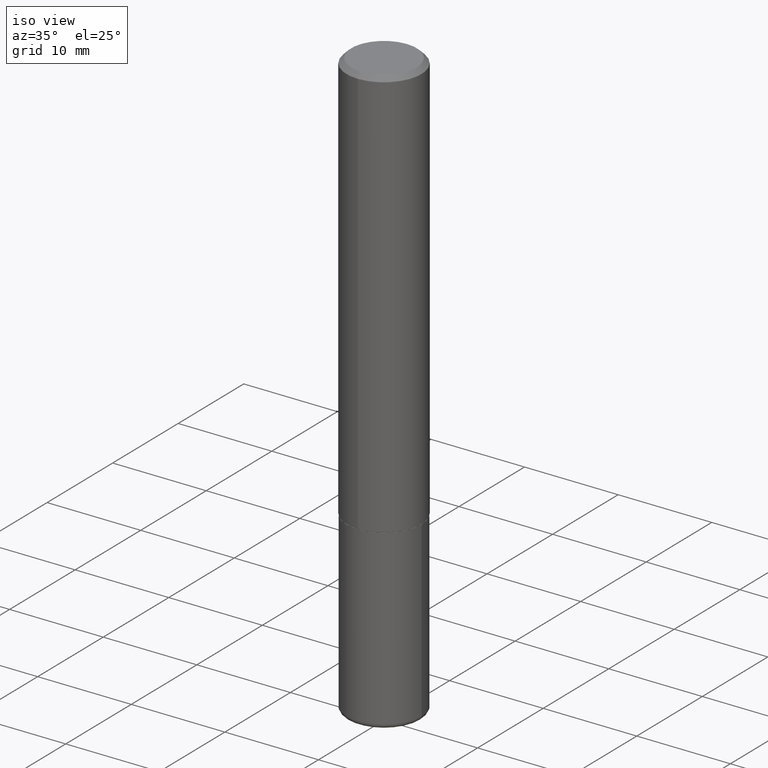
[diagram: clean part render]
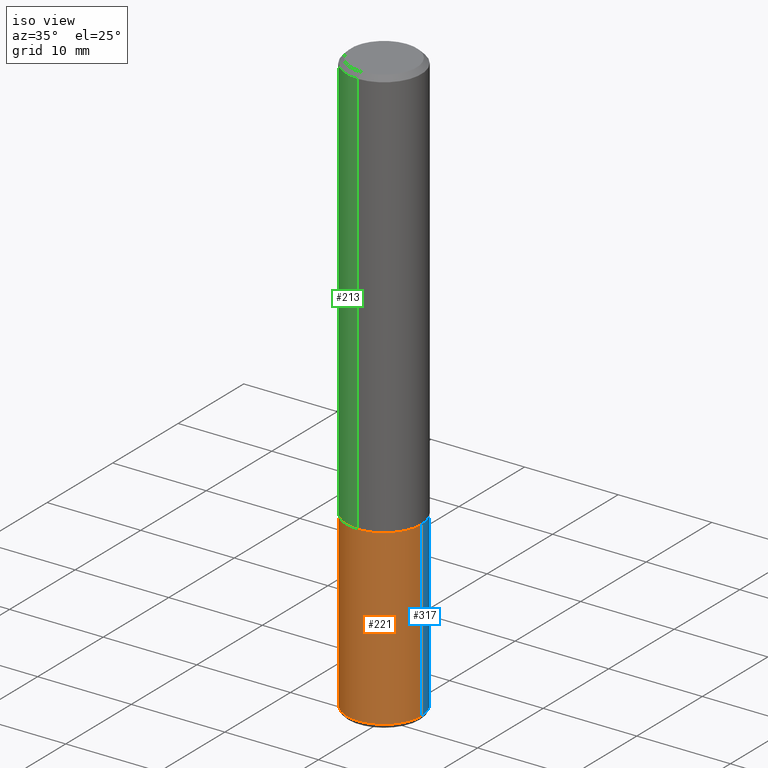
[diagram: same view with three faces highlighted in distinct colors, each labeled with its STEP entity id]
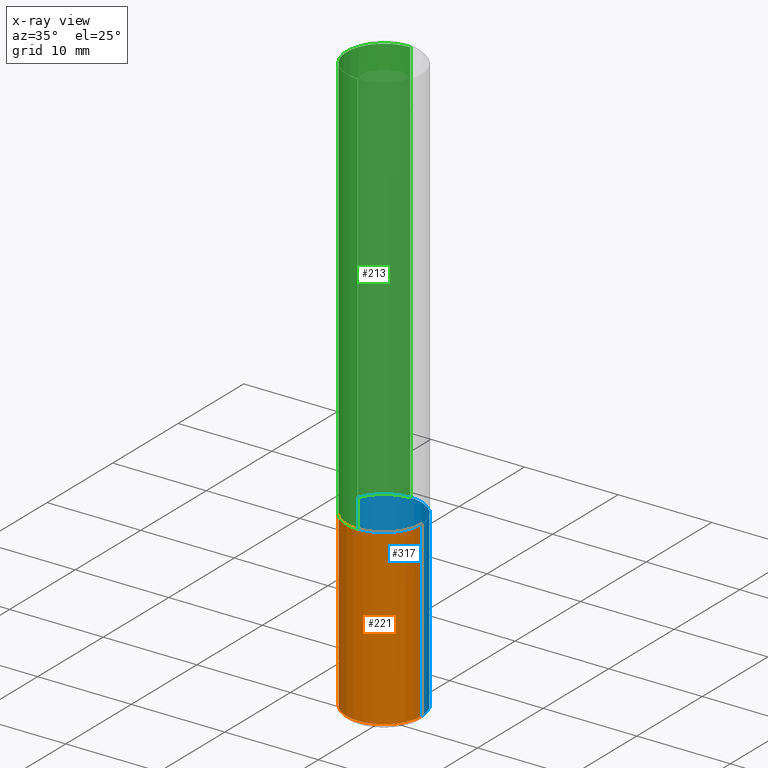
[diagram: x-ray of the same camera — body ghosted, the three highlighted faces saturated]
A machine part, iso view with three faces highlighted in distinct colors.
The next image is the same camera in x-ray (body ghosted, the three faces saturated) — at least one of them is partly hidden behind the body in this view.
Their STEP definitions:

[orange] entity #221 — the highlighted cylindrical surface (partial cylindrical patch) has radius 4.0005 mm, axis along (-0, 0, 1).
#3 = ORIENTED_EDGE ( 'NONE', *, *, #268, .F. ) ;
#5 = AXIS2_PLACEMENT_3D ( 'NONE', #410, #50, #305 ) ;
#6 = VERTEX_POINT ( 'NONE', #391 ) ;
#25 = CARTESIAN_POINT ( 'NONE',  ( -0.1575000000000000011, 1.119104808822157801E-15, -7.747322767151475583E-30 ) ) ;
#46 = AXIS2_PLACEMENT_3D ( 'NONE', #233, #417, #357 ) ;
#50 = DIRECTION ( 'NONE',  ( -2.445468806185136597E-29, 3.491481338843145583E-15, 1.000000000000000000 ) ) ;
#51 = FACE_OUTER_BOUND ( 'NONE', #137, .T. ) ;
#53 = DIRECTION ( 'NONE',  ( -2.445468806185136877E-29, 3.491481338843145188E-15, 1.000000000000000000 ) ) ;
#58 = CARTESIAN_POINT ( 'NONE',  ( 0.1575000000000000289, -9.690955604093032420E-15, -2.460600000000000342 ) ) ;
#85 = CARTESIAN_POINT ( 'NONE',  ( -0.1575000000000000289, -7.472034173535286547E-15, -2.460600000000000342 ) ) ;
#88 = CIRCLE ( 'NONE', #5, 0.1575000000000000011 ) ;
#122 = CIRCLE ( 'NONE', #46, 0.1575000000000000011 ) ;
#134 = VECTOR ( 'NONE', #252, 39.37007874015748143 ) ;
#137 = EDGE_LOOP ( 'NONE', ( #3, #384, #321, #170 ) ) ;
#144 = VERTEX_POINT ( 'NONE', #184 ) ;
#170 = ORIENTED_EDGE ( 'NONE', *, *, #223, .F. ) ;
#184 = CARTESIAN_POINT ( 'NONE',  ( 0.1575000000000000011, -7.148109745013570136E-15, -1.732300000000000173 ) ) ;
#215 = CYLINDRICAL_SURFACE ( 'NONE', #346, 0.1575000000000000011 ) ;
#221 = ADVANCED_FACE ( 'NONE', ( #51 ), #215, .T. ) ;
#223 = EDGE_CURVE ( 'NONE', #6, #144, #88, .T. ) ;
#233 = CARTESIAN_POINT ( 'NONE',  ( 6.017320544499148018E-29, -8.591138982357444151E-15, -2.460600000000000342 ) ) ;
#236 = VERTEX_POINT ( 'NONE', #58 ) ;
#252 = DIRECTION ( 'NONE',  ( -2.445468806185136877E-29, 3.491481338843145188E-15, 1.000000000000000000 ) ) ;
#268 = EDGE_CURVE ( 'NONE', #300, #6, #306, .T. ) ;
#281 = CARTESIAN_POINT ( 'NONE',  ( 0.000000000000000000, 0.000000000000000000, 0.000000000000000000 ) ) ;
#300 = VERTEX_POINT ( 'NONE', #85 ) ;
#305 = DIRECTION ( 'NONE',  ( 1.000000000000000000, -6.982962677686268288E-15, 0.000000000000000000 ) ) ;
#306 = LINE ( 'NONE', #25, #134 ) ;
#321 = ORIENTED_EDGE ( 'NONE', *, *, #340, .T. ) ;
#336 = DIRECTION ( 'NONE',  ( 1.000000000000000000, -6.982962677686265922E-15, 4.876176775795935232E-29 ) ) ;
#340 = EDGE_CURVE ( 'NONE', #236, #144, #373, .T. ) ;
#342 = CARTESIAN_POINT ( 'NONE',  ( 0.1575000000000000011, -1.099816621735586889E-15, 7.679978421878598033E-30 ) ) ;
#343 = DIRECTION ( 'NONE',  ( -2.445468806185136597E-29, 3.491481338843145583E-15, 1.000000000000000000 ) ) ;
#346 = AXIS2_PLACEMENT_3D ( 'NONE', #281, #343, #336 ) ;
#357 = DIRECTION ( 'NONE',  ( 1.000000000000000000, -6.982962677686261977E-15, 0.000000000000000000 ) ) ;
#362 = VECTOR ( 'NONE', #53, 39.37007874015748143 ) ;
#373 = LINE ( 'NONE', #342, #362 ) ;
#384 = ORIENTED_EDGE ( 'NONE', *, *, #403, .T. ) ;
#391 = CARTESIAN_POINT ( 'NONE',  ( -0.1575000000000000011, -6.200611243995555405E-15, -1.732300000000000173 ) ) ;
#403 = EDGE_CURVE ( 'NONE', #300, #236, #122, .T. ) ;
#410 = CARTESIAN_POINT ( 'NONE',  ( 4.236285612954512953E-29, -6.048293123277982656E-15, -1.732300000000000173 ) ) ;
#417 = DIRECTION ( 'NONE',  ( -2.445468806185136597E-29, 3.491481338843145583E-15, 1.000000000000000000 ) ) ;

[blue] entity #317 — the highlighted cylindrical surface (partial cylindrical patch) has radius 4.0005 mm, axis along (-0, 0, 1).
#6 = VERTEX_POINT ( 'NONE', #391 ) ;
#25 = CARTESIAN_POINT ( 'NONE',  ( -0.1575000000000000011, 1.119104808822157801E-15, -7.747322767151475583E-30 ) ) ;
#53 = DIRECTION ( 'NONE',  ( -2.445468806185136877E-29, 3.491481338843145188E-15, 1.000000000000000000 ) ) ;
#58 = CARTESIAN_POINT ( 'NONE',  ( 0.1575000000000000289, -9.690955604093032420E-15, -2.460600000000000342 ) ) ;
#63 = ORIENTED_EDGE ( 'NONE', *, *, #285, .F. ) ;
#74 = EDGE_LOOP ( 'NONE', ( #416, #136, #63, #347 ) ) ;
#85 = CARTESIAN_POINT ( 'NONE',  ( -0.1575000000000000289, -7.472034173535286547E-15, -2.460600000000000342 ) ) ;
#90 = DIRECTION ( 'NONE',  ( 1.000000000000000000, -6.982962677686268288E-15, 0.000000000000000000 ) ) ;
#105 = AXIS2_PLACEMENT_3D ( 'NONE', #253, #250, #90 ) ;
#112 = EDGE_CURVE ( 'NONE', #236, #300, #207, .T. ) ;
#124 = DIRECTION ( 'NONE',  ( 1.000000000000000000, -6.982962677686265922E-15, 4.876176775795935232E-29 ) ) ;
#134 = VECTOR ( 'NONE', #252, 39.37007874015748143 ) ;
#136 = ORIENTED_EDGE ( 'NONE', *, *, #268, .T. ) ;
#144 = VERTEX_POINT ( 'NONE', #184 ) ;
#160 = CARTESIAN_POINT ( 'NONE',  ( 0.000000000000000000, 0.000000000000000000, 0.000000000000000000 ) ) ;
#169 = DIRECTION ( 'NONE',  ( -2.445468806185136597E-29, 3.491481338843145583E-15, 1.000000000000000000 ) ) ;
#172 = CARTESIAN_POINT ( 'NONE',  ( 6.017320544499148018E-29, -8.591138982357444151E-15, -2.460600000000000342 ) ) ;
#184 = CARTESIAN_POINT ( 'NONE',  ( 0.1575000000000000011, -7.148109745013570136E-15, -1.732300000000000173 ) ) ;
#186 = FACE_OUTER_BOUND ( 'NONE', #74, .T. ) ;
#207 = CIRCLE ( 'NONE', #241, 0.1575000000000000011 ) ;
#236 = VERTEX_POINT ( 'NONE', #58 ) ;
#241 = AXIS2_PLACEMENT_3D ( 'NONE', #172, #169, #294 ) ;
#247 = CIRCLE ( 'NONE', #105, 0.1575000000000000011 ) ;
#250 = DIRECTION ( 'NONE',  ( -2.445468806185136597E-29, 3.491481338843145583E-15, 1.000000000000000000 ) ) ;
#252 = DIRECTION ( 'NONE',  ( -2.445468806185136877E-29, 3.491481338843145188E-15, 1.000000000000000000 ) ) ;
#253 = CARTESIAN_POINT ( 'NONE',  ( 4.236285612954512953E-29, -6.048293123277982656E-15, -1.732300000000000173 ) ) ;
#268 = EDGE_CURVE ( 'NONE', #300, #6, #306, .T. ) ;
#279 = DIRECTION ( 'NONE',  ( -2.445468806185136597E-29, 3.491481338843145583E-15, 1.000000000000000000 ) ) ;
#282 = AXIS2_PLACEMENT_3D ( 'NONE', #160, #279, #124 ) ;
#285 = EDGE_CURVE ( 'NONE', #144, #6, #247, .T. ) ;
#294 = DIRECTION ( 'NONE',  ( 1.000000000000000000, -6.982962677686261977E-15, 0.000000000000000000 ) ) ;
#300 = VERTEX_POINT ( 'NONE', #85 ) ;
#306 = LINE ( 'NONE', #25, #134 ) ;
#308 = CYLINDRICAL_SURFACE ( 'NONE', #282, 0.1575000000000000011 ) ;
#317 = ADVANCED_FACE ( 'NONE', ( #186 ), #308, .T. ) ;
#340 = EDGE_CURVE ( 'NONE', #236, #144, #373, .T. ) ;
#342 = CARTESIAN_POINT ( 'NONE',  ( 0.1575000000000000011, -1.099816621735586889E-15, 7.679978421878598033E-30 ) ) ;
#347 = ORIENTED_EDGE ( 'NONE', *, *, #340, .F. ) ;
#362 = VECTOR ( 'NONE', #53, 39.37007874015748143 ) ;
#373 = LINE ( 'NONE', #342, #362 ) ;
#391 = CARTESIAN_POINT ( 'NONE',  ( -0.1575000000000000011, -6.200611243995555405E-15, -1.732300000000000173 ) ) ;
#416 = ORIENTED_EDGE ( 'NONE', *, *, #112, .T. ) ;

[green] entity #213 — the highlighted cylindrical surface (partial cylindrical patch) has radius 4.0005 mm, axis along (-0, 0, 1).
#7 = DIRECTION ( 'NONE',  ( -2.444792844423431679E-29, 3.492449354559260946E-15, 1.000000000000000000 ) ) ;
#9 = CARTESIAN_POINT ( 'NONE',  ( -1.099816621735546065E-15, -0.1575000000000062461, -1.731299999999999617 ) ) ;
#14 = EDGE_CURVE ( 'NONE', #165, #99, #309, .T. ) ;
#35 = ORIENTED_EDGE ( 'NONE', *, *, #129, .T. ) ;
#37 = CARTESIAN_POINT ( 'NONE',  ( 4.232669851550288088E-29, -6.046477567548449110E-15, -1.731300000000000283 ) ) ;
#45 = LINE ( 'NONE', #82, #193 ) ;
#55 = CARTESIAN_POINT ( 'NONE',  ( 1.119104808822158195E-15, 0.1575000000000000844, -5.500607733430839175E-16 ) ) ;
#72 = CARTESIAN_POINT ( 'NONE',  ( 1.099816621735587480E-15, 0.1574999999999999456, -0.02000000000000058328 ) ) ;
#82 = CARTESIAN_POINT ( 'NONE',  ( -1.099816621735587480E-15, -0.1575000000000000844, 5.500607733430839175E-16 ) ) ;
#91 = EDGE_CURVE ( 'NONE', #293, #173, #310, .T. ) ;
#99 = VERTEX_POINT ( 'NONE', #328 ) ;
#109 = DIRECTION ( 'NONE',  ( -6.982962677686264344E-15, -1.000000000000000000, 3.496114991891764787E-15 ) ) ;
#126 = CARTESIAN_POINT ( 'NONE',  ( 0.000000000000000000, 0.000000000000000000, 0.000000000000000000 ) ) ;
#129 = EDGE_CURVE ( 'NONE', #173, #99, #45, .T. ) ;
#158 = DIRECTION ( 'NONE',  ( -2.444792844423431679E-29, 3.492449354559260946E-15, 1.000000000000000000 ) ) ;
#165 = VERTEX_POINT ( 'NONE', #72 ) ;
#173 = VERTEX_POINT ( 'NONE', #9 ) ;
#176 = DIRECTION ( 'NONE',  ( -2.444792844423431679E-29, 3.492449354559260946E-15, 1.000000000000000000 ) ) ;
#182 = AXIS2_PLACEMENT_3D ( 'NONE', #126, #158, #256 ) ;
#193 = VECTOR ( 'NONE', #366, 39.37007874015748143 ) ;
#213 = ADVANCED_FACE ( 'NONE', ( #283 ), #217, .T. ) ;
#217 = CYLINDRICAL_SURFACE ( 'NONE', #182, 0.1575000000000000844 ) ;
#220 = CARTESIAN_POINT ( 'NONE',  ( 1.119104808822180086E-15, 0.1574999999999941447, -1.731300000000000727 ) ) ;
#226 = AXIS2_PLACEMENT_3D ( 'NONE', #238, #176, #109 ) ;
#238 = CARTESIAN_POINT ( 'NONE',  ( 4.889585688846871450E-31, -6.984898709118533528E-17, -0.02000000000000003511 ) ) ;
#243 = EDGE_CURVE ( 'NONE', #293, #165, #280, .T. ) ;
#256 = DIRECTION ( 'NONE',  ( -6.982962677686265922E-15, -1.000000000000000000, 3.492449354559260946E-15 ) ) ;
#269 = EDGE_LOOP ( 'NONE', ( #378, #351, #35, #379 ) ) ;
#271 = DIRECTION ( 'NONE',  ( -6.982962677686265922E-15, -1.000000000000000000, 3.469013325287948955E-15 ) ) ;
#280 = LINE ( 'NONE', #55, #304 ) ;
#283 = FACE_OUTER_BOUND ( 'NONE', #269, .T. ) ;
#287 = AXIS2_PLACEMENT_3D ( 'NONE', #37, #7, #271 ) ;
#293 = VERTEX_POINT ( 'NONE', #220 ) ;
#304 = VECTOR ( 'NONE', #402, 39.37007874015748143 ) ;
#309 = CIRCLE ( 'NONE', #226, 0.1575000000000000289 ) ;
#310 = CIRCLE ( 'NONE', #287, 0.1575000000000001954 ) ;
#328 = CARTESIAN_POINT ( 'NONE',  ( -1.080528434649015779E-15, -0.1575000000000000844, -0.01999999999999948347 ) ) ;
#351 = ORIENTED_EDGE ( 'NONE', *, *, #91, .T. ) ;
#366 = DIRECTION ( 'NONE',  ( -2.444792844423431399E-29, 3.492449354559261341E-15, 1.000000000000000000 ) ) ;
#378 = ORIENTED_EDGE ( 'NONE', *, *, #243, .F. ) ;
#379 = ORIENTED_EDGE ( 'NONE', *, *, #14, .F. ) ;
#402 = DIRECTION ( 'NONE',  ( -2.444792844423431399E-29, 3.492449354559261341E-15, 1.000000000000000000 ) ) ;